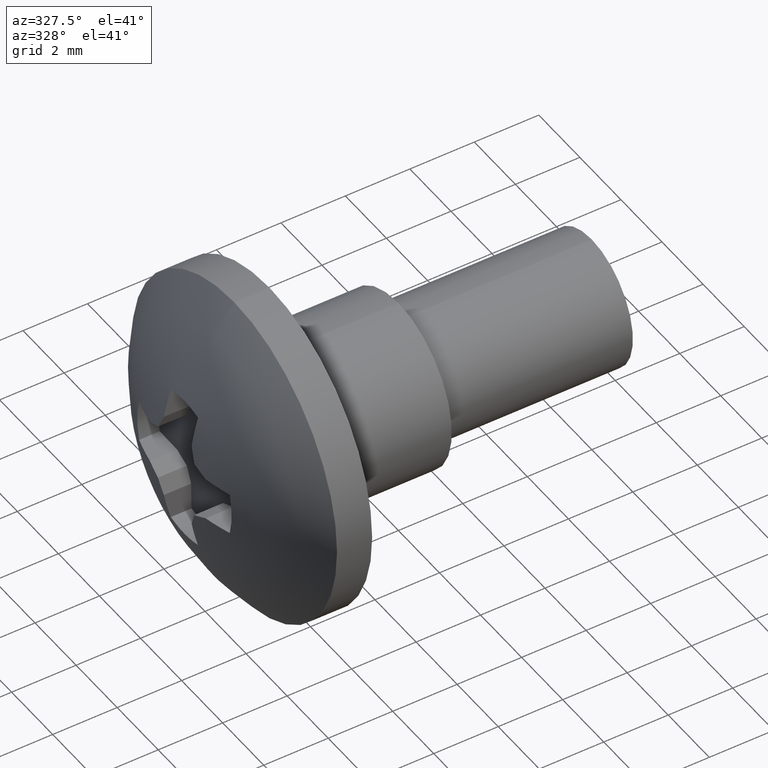
[diagram: clean part render]
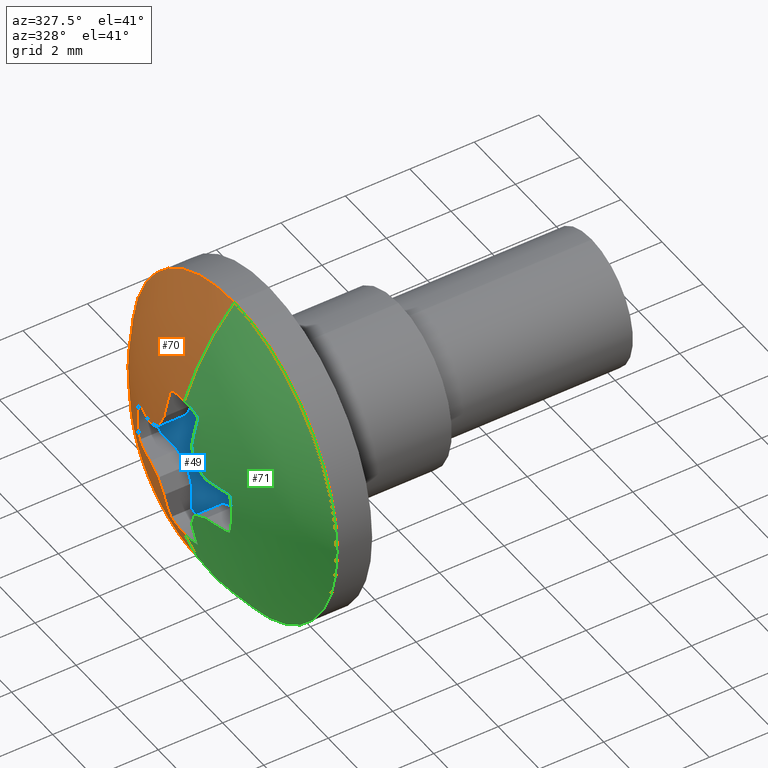
[diagram: same view with three faces highlighted in distinct colors, each labeled with its STEP entity id]
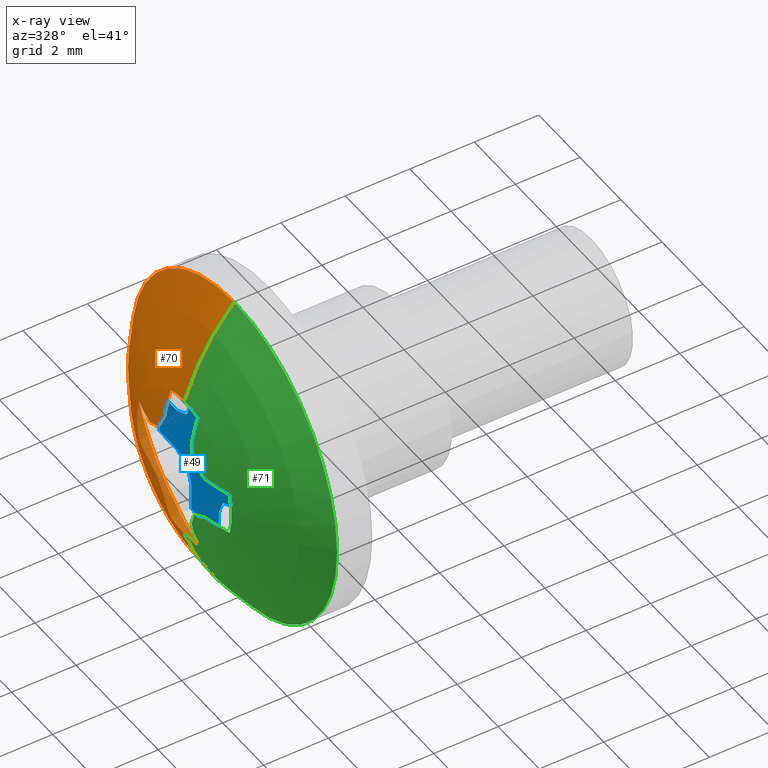
[diagram: x-ray of the same camera — body ghosted, the three highlighted faces saturated]
A machine part, auxiliary view with three faces highlighted in distinct colors.
The next image is the same camera in x-ray (body ghosted, the three faces saturated) — at least one of them is partly hidden behind the body in this view.
Their STEP definitions:

[orange] entity #70 — the highlighted spherical surface has radius 7.5 mm.
#70=ADVANCED_FACE('',(#375),#374,.T.);
#374=SPHERICAL_SURFACE('',#549,7.50000000000E+00);
#375=FACE_OUTER_BOUND('',#550,.T.);
#546=CARTESIAN_POINT('',(-5.50000000000E+00,0.00000000000E+00,0.00000000000E+00));
#547=DIRECTION('',(-1.00000000000E+00,-0.00000000000E+00,-0.00000000000E+00));
#548=DIRECTION('',(-0.00000000000E+00,2.44921270764E-16,1.00000000000E+00));
#549=AXIS2_PLACEMENT_3D('',#546,#547,#548);
#550=EDGE_LOOP('',(#692,#693,#694,#695,#696,#697,#698,#699,#700,#701,#702,#703,#704,#705));
#692=ORIENTED_EDGE('',*,*,#787,.T.);
#693=ORIENTED_EDGE('',*,*,#736,.T.);
#694=ORIENTED_EDGE('',*,*,#733,.T.);
#695=ORIENTED_EDGE('',*,*,#738,.T.);
#696=ORIENTED_EDGE('',*,*,#723,.T.);
#697=ORIENTED_EDGE('',*,*,#729,.T.);
#698=ORIENTED_EDGE('',*,*,#727,.T.);
#699=ORIENTED_EDGE('',*,*,#764,.T.);
#700=ORIENTED_EDGE('',*,*,#766,.T.);
#701=ORIENTED_EDGE('',*,*,#768,.T.);
#702=ORIENTED_EDGE('',*,*,#791,.T.);
#703=ORIENTED_EDGE('',*,*,#800,.F.);
#704=ORIENTED_EDGE('',*,*,#796,.T.);
#705=ORIENTED_EDGE('',*,*,#801,.T.);
#723=EDGE_CURVE('',#803,#817,#824,.T.);
#727=EDGE_CURVE('',#831,#845,#852,.T.);
#729=EDGE_CURVE('',#817,#831,#864,.T.);
#733=EDGE_CURVE('',#871,#885,#892,.T.);
#736=EDGE_CURVE('',#899,#871,#912,.T.);
#738=EDGE_CURVE('',#885,#803,#924,.T.);
#764=EDGE_CURVE('',#845,#1097,#1104,.T.);
#766=EDGE_CURVE('',#1097,#1110,#1117,.T.);
#768=EDGE_CURVE('',#1110,#1123,#1130,.T.);
#787=EDGE_CURVE('',#1254,#899,#1255,.T.);
#791=EDGE_CURVE('',#1123,#1273,#1280,.T.);
#796=EDGE_CURVE('',#1310,#1311,#1312,.T.);
#800=EDGE_CURVE('',#1310,#1273,#1336,.T.);
#801=EDGE_CURVE('',#1311,#1254,#1342,.T.);
#803=VERTEX_POINT('',#1349);
#817=VERTEX_POINT('',#1357);
#824=CIRCLE('',#1364,7.46743081258E+00);
#831=VERTEX_POINT('',#1366);
#845=VERTEX_POINT('',#1374);
#852=CIRCLE('',#1381,7.46743081258E+00);
#864=CIRCLE('',#1389,2.30000000000E+00);
#871=VERTEX_POINT('',#1391);
#885=VERTEX_POINT('',#1399);
#892=CIRCLE('',#1406,7.40859451546E+00);
#899=VERTEX_POINT('',#1408);
#912=CIRCLE('',#1418,7.46743081258E+00);
#924=CIRCLE('',#1425,7.40859451546E+00);
#1097=VERTEX_POINT('',#1534);
#1104=CIRCLE('',#1541,7.40859451546E+00);
#1110=VERTEX_POINT('',#1542);
#1117=CIRCLE('',#1549,7.40859451546E+00);
#1123=VERTEX_POINT('',#1550);
#1130=CIRCLE('',#1557,7.46743081258E+00);
#1254=VERTEX_POINT('',#1630);
#1255=CIRCLE('',#1634,2.30000000000E+00);
#1273=VERTEX_POINT('',#1643);
#1280=CIRCLE('',#1651,2.30000000000E+00);
#1310=VERTEX_POINT('',#1660);
#1311=VERTEX_POINT('',#1661);
#1312=CIRCLE('',#1665,5.00000000000E+00);
#1336=(BOUNDED_CURVE() B_SPLINE_CURVE(2,(#1674,#1675,#1676),.UNSPECIFIED.,.F.,.F.) B_SPLINE_CURVE_WITH_KNOTS((3,3),(0.00000000000E+00,7.42317475378E-01),.UNSPECIFIED.) CURVE() GEOMETRIC_REPRESENTATION_ITEM() RATIONAL_B_SPLINE_CURVE((1.00000000000E+00,9.70862208826E-01,9.84983400817E-01)) REPRESENTATION_ITEM('') );
#1342=(BOUNDED_CURVE() B_SPLINE_CURVE(2,(#1677,#1678,#1679),.UNSPECIFIED.,.F.,.F.) B_SPLINE_CURVE_WITH_KNOTS((3,3),(0.00000000000E+00,7.42317470334E-01),.UNSPECIFIED.) CURVE() GEOMETRIC_REPRESENTATION_ITEM() RATIONAL_B_SPLINE_CURVE((7.50000000000E-01,7.28146656768E-01,7.38737550469E-01)) REPRESENTATION_ITEM('') );
#1349=CARTESIAN_POINT('',(-1.28457102863E+01,1.35476261775E+00,-6.74654459122E-01));
#1357=CARTESIAN_POINT('',(-1.26386273190E+01,2.20331735624E+00,-6.59842881067E-01));
#1361=CARTESIAN_POINT('',(-5.50000000000E+00,1.21851929267E-02,-6.98089235243E-01));
#1362=DIRECTION('',(-5.20417042793E-18,1.74524064370E-02,-9.99847695156E-01));
#1363=DIRECTION('',(9.83699811979E-01,-1.79791076546E-01,-3.13826491457E-03));
#1364=AXIS2_PLACEMENT_3D('',#1361,#1362,#1363);
#1366=CARTESIAN_POINT('',(-1.26386273190E+01,2.20331735624E+00,6.59842881067E-01));
#1374=CARTESIAN_POINT('',(-1.28457102863E+01,1.35476261775E+00,6.74654459122E-01));
#1378=CARTESIAN_POINT('',(-5.50000000000E+00,1.21851929268E-02,6.98089235243E-01));
#1379=DIRECTION('',(8.67361737988E-19,1.74524064372E-02,9.99847695156E-01));
#1380=DIRECTION('',(9.55968324072E-01,-2.93425171028E-01,5.12175541184E-03));
#1381=AXIS2_PLACEMENT_3D('',#1378,#1379,#1380);
#1386=CARTESIAN_POINT('',(-1.26386273190E+01,0.00000000000E+00,0.00000000000E+00));
#1387=DIRECTION('',(1.00000000000E+00,0.00000000000E+00,0.00000000000E+00));
#1388=DIRECTION('',(-0.00000000000E+00,-9.57964067930E-01,2.86888209159E-01));
#1389=AXIS2_PLACEMENT_3D('',#1386,#1387,#1388);
#1391=CARTESIAN_POINT('',(-1.28457102863E+01,6.74654459122E-01,-1.35476261775E+00));
#1399=CARTESIAN_POINT('',(-1.28950302670E+01,8.84174007422E-01,-8.84174007422E-01));
#1403=CARTESIAN_POINT('',(-5.50000000000E+00,1.06643561779E+00,-4.74807728073E-01));
#1404=DIRECTION('',(6.93889390391E-18,9.13545457643E-01,-4.06736643076E-01));
#1405=DIRECTION('',(9.91511989349E-01,5.28819815750E-02,1.18774875294E-01));
#1406=AXIS2_PLACEMENT_3D('',#1403,#1404,#1405);
#1408=CARTESIAN_POINT('',(-1.26386273190E+01,6.59842881067E-01,-2.20331735624E+00));
#1415=CARTESIAN_POINT('',(-5.50000000000E+00,6.98089235244E-01,-1.21851929269E-02));
#1416=DIRECTION('',(3.46944695195E-18,9.99847695156E-01,-1.74524064373E-02));
#1417=DIRECTION('',(9.55968324072E-01,5.12175541187E-03,2.93425171028E-01));
#1418=AXIS2_PLACEMENT_3D('',#1415,#1416,#1417);
#1422=CARTESIAN_POINT('',(-5.50000000000E+00,4.74807728073E-01,-1.06643561779E+00));
#1423=DIRECTION('',(-3.46944695195E-18,4.06736643076E-01,-9.13545457643E-01));
#1424=DIRECTION('',(9.98169119868E-01,-5.52555924736E-02,-2.46013747929E-02));
#1425=AXIS2_PLACEMENT_3D('',#1422,#1423,#1424);
#1534=CARTESIAN_POINT('',(-1.28950302670E+01,8.84174007422E-01,8.84174007422E-01));
#1538=CARTESIAN_POINT('',(-5.50000000000E+00,4.74807728073E-01,1.06643561779E+00));
#1539=DIRECTION('',(6.93889390391E-18,4.06736643076E-01,9.13545457643E-01));
#1540=DIRECTION('',(9.91511989349E-01,-1.18774875294E-01,5.28819815750E-02));
#1541=AXIS2_PLACEMENT_3D('',#1538,#1539,#1540);
#1542=CARTESIAN_POINT('',(-1.28457102863E+01,6.74654459122E-01,1.35476261775E+00));
#1546=CARTESIAN_POINT('',(-5.50000000000E+00,1.06643561779E+00,4.74807728073E-01));
#1547=DIRECTION('',(-3.46944695195E-18,9.13545457643E-01,4.06736643076E-01));
#1548=DIRECTION('',(9.98169119868E-01,2.46013747929E-02,-5.52555924736E-02));
#1549=AXIS2_PLACEMENT_3D('',#1546,#1547,#1548);
#1550=CARTESIAN_POINT('',(-1.26386273190E+01,6.59842881067E-01,2.20331735624E+00));
#1554=CARTESIAN_POINT('',(-5.50000000000E+00,6.98089235244E-01,1.21851929269E-02));
#1555=DIRECTION('',(5.20417042793E-18,9.99847695156E-01,1.74524064374E-02));
#1556=DIRECTION('',(9.83699811979E-01,3.13826491464E-03,-1.79791076546E-01));
#1557=AXIS2_PLACEMENT_3D('',#1554,#1555,#1556);
#1630=CARTESIAN_POINT('',(-1.26386273190E+01,1.59523718116E-10,-2.30000000000E+00));
#1631=CARTESIAN_POINT('',(-1.26386273190E+01,0.00000000000E+00,0.00000000000E+00));
#1632=DIRECTION('',(1.00000000000E+00,0.00000000000E+00,0.00000000000E+00));
#1633=DIRECTION('',(-0.00000000000E+00,-4.78893236861E-14,1.00000000000E+00));
#1634=AXIS2_PLACEMENT_3D('',#1631,#1632,#1633);
#1643=CARTESIAN_POINT('',(-1.26386273190E+01,-1.19076156192E-15,2.30000000000E+00));
#1648=CARTESIAN_POINT('',(-1.26386273190E+01,0.00000000000E+00,0.00000000000E+00));
#1649=DIRECTION('',(1.00000000000E+00,0.00000000000E+00,0.00000000000E+00));
#1650=DIRECTION('',(-0.00000000000E+00,7.00272945365E-11,-1.00000000000E+00));
#1651=AXIS2_PLACEMENT_3D('',#1648,#1649,#1650);
#1660=CARTESIAN_POINT('',(-1.10901699437E+01,-9.08362650144E-16,5.00000000000E+00));
#1661=CARTESIAN_POINT('',(-1.10901699437E+01,0.00000000000E+00,-5.00000000000E+00));
#1662=CARTESIAN_POINT('',(-1.10901699437E+01,0.00000000000E+00,0.00000000000E+00));
#1663=DIRECTION('',(-1.00000000000E+00,0.00000000000E+00,0.00000000000E+00));
#1664=DIRECTION('',(-0.00000000000E+00,-5.92118946466E-17,1.00000000000E+00));
#1665=AXIS2_PLACEMENT_3D('',#1662,#1663,#1664);
#1674=CARTESIAN_POINT('',(-1.10901699437E+01,1.22460635383E-15,5.00000000006E+00));
#1675=CARTESIAN_POINT('',(-1.21507571948E+01,9.34185423081E-16,3.81422740526E+00));
#1676=CARTESIAN_POINT('',(-1.26386273259E+01,5.63318917561E-16,2.29999997878E+00));
#1677=CARTESIAN_POINT('',(-1.10901699437E+01,-1.77635683940E-15,-5.00000000006E+00));
#1678=CARTESIAN_POINT('',(-1.21507571874E+01,-1.15057159636E-15,-3.81422741356E+00));
#1679=CARTESIAN_POINT('',(-1.26386273193E+01,-6.71747485549E-16,-2.29999999907E+00));

[blue] entity #49 — the highlighted planar face has unit normal (1, 0, -0).
#49=ADVANCED_FACE('',(#165),#164,.F.);
#164=PLANE('',#444);
#165=FACE_OUTER_BOUND('',#445,.T.);
#441=CARTESIAN_POINT('',(-1.20000000000E+01,-2.88111015058E+00,2.88111015058E+00));
#442=DIRECTION('',(1.00000000000E+00,0.00000000000E+00,-0.00000000000E+00));
#443=DIRECTION('',(-0.00000000000E+00,0.00000000000E+00,-1.00000000000E+00));
#444=AXIS2_PLACEMENT_3D('',#441,#442,#443);
#445=EDGE_LOOP('',(#590,#591,#592,#593,#594,#595,#596,#597,#598,#599,#600,#601,#602,#603,#604,#605,#606,#607,#608,#609));
#590=ORIENTED_EDGE('',*,*,#728,.T.);
#591=ORIENTED_EDGE('',*,*,#721,.T.);
#592=ORIENTED_EDGE('',*,*,#737,.T.);
#593=ORIENTED_EDGE('',*,*,#731,.T.);
#594=ORIENTED_EDGE('',*,*,#735,.T.);
#595=ORIENTED_EDGE('',*,*,#749,.T.);
#596=ORIENTED_EDGE('',*,*,#750,.T.);
#597=ORIENTED_EDGE('',*,*,#751,.T.);
#598=ORIENTED_EDGE('',*,*,#752,.T.);
#599=ORIENTED_EDGE('',*,*,#753,.T.);
#600=ORIENTED_EDGE('',*,*,#754,.T.);
#601=ORIENTED_EDGE('',*,*,#755,.T.);
#602=ORIENTED_EDGE('',*,*,#756,.T.);
#603=ORIENTED_EDGE('',*,*,#757,.T.);
#604=ORIENTED_EDGE('',*,*,#758,.T.);
#605=ORIENTED_EDGE('',*,*,#759,.T.);
#606=ORIENTED_EDGE('',*,*,#760,.T.);
#607=ORIENTED_EDGE('',*,*,#761,.T.);
#608=ORIENTED_EDGE('',*,*,#762,.T.);
#609=ORIENTED_EDGE('',*,*,#725,.T.);
#721=EDGE_CURVE('',#810,#802,#811,.T.);
#725=EDGE_CURVE('',#838,#830,#839,.T.);
#728=EDGE_CURVE('',#830,#810,#858,.T.);
#731=EDGE_CURVE('',#878,#870,#879,.T.);
#735=EDGE_CURVE('',#870,#898,#906,.T.);
#737=EDGE_CURVE('',#802,#878,#918,.T.);
#749=EDGE_CURVE('',#898,#1000,#1001,.T.);
#750=EDGE_CURVE('',#1000,#1007,#1008,.T.);
#751=EDGE_CURVE('',#1007,#1014,#1015,.T.);
#752=EDGE_CURVE('',#1014,#1021,#1022,.T.);
#753=EDGE_CURVE('',#1021,#1028,#1029,.T.);
#754=EDGE_CURVE('',#1028,#1035,#1036,.T.);
#755=EDGE_CURVE('',#1035,#1042,#1043,.T.);
#756=EDGE_CURVE('',#1042,#1049,#1050,.T.);
#757=EDGE_CURVE('',#1049,#1056,#1057,.T.);
#758=EDGE_CURVE('',#1056,#1063,#1064,.T.);
#759=EDGE_CURVE('',#1063,#1070,#1071,.T.);
#760=EDGE_CURVE('',#1070,#1077,#1078,.T.);
#761=EDGE_CURVE('',#1077,#1084,#1085,.T.);
#762=EDGE_CURVE('',#1084,#838,#1091,.T.);
#802=VERTEX_POINT('',#1348);
#810=VERTEX_POINT('',#1353);
#811=LINE('',#1354,#1355);
#830=VERTEX_POINT('',#1365);
#838=VERTEX_POINT('',#1370);
#839=LINE('',#1371,#1372);
#858=CIRCLE('',#1385,2.30000000000E+00);
#870=VERTEX_POINT('',#1390);
#878=VERTEX_POINT('',#1395);
#879=LINE('',#1396,#1397);
#898=VERTEX_POINT('',#1407);
#906=LINE('',#1412,#1413);
#918=LINE('',#1419,#1420);
#1000=VERTEX_POINT('',#1476);
#1001=CIRCLE('',#1480,2.30000000000E+00);
#1007=VERTEX_POINT('',#1481);
#1008=LINE('',#1482,#1483);
#1014=VERTEX_POINT('',#1485);
#1015=LINE('',#1486,#1487);
#1021=VERTEX_POINT('',#1489);
#1022=LINE('',#1490,#1491);
#1028=VERTEX_POINT('',#1493);
#1029=LINE('',#1494,#1495);
#1035=VERTEX_POINT('',#1497);
#1036=CIRCLE('',#1501,2.30000000000E+00);
#1042=VERTEX_POINT('',#1502);
#1043=LINE('',#1503,#1504);
#1049=VERTEX_POINT('',#1506);
#1050=LINE('',#1507,#1508);
#1056=VERTEX_POINT('',#1510);
#1057=LINE('',#1511,#1512);
#1063=VERTEX_POINT('',#1514);
#1064=LINE('',#1515,#1516);
#1070=VERTEX_POINT('',#1518);
#1071=CIRCLE('',#1522,2.30000000000E+00);
#1077=VERTEX_POINT('',#1523);
#1078=LINE('',#1524,#1525);
#1084=VERTEX_POINT('',#1527);
#1085=LINE('',#1528,#1529);
#1091=LINE('',#1531,#1532);
#1348=CARTESIAN_POINT('',(-1.20000000000E+01,1.35476261775E+00,-6.74654459122E-01));
#1353=CARTESIAN_POINT('',(-1.20000000000E+01,2.20331735624E+00,-6.59842881067E-01));
#1354=CARTESIAN_POINT('',(-1.20000000000E+01,2.20331735624E+00,-6.59842881067E-01));
#1355=VECTOR('',#1356,8.48683997173E-01);
#1356=DIRECTION('',(0.00000000000E+00,-9.99847695156E-01,-1.74524064367E-02));
#1365=CARTESIAN_POINT('',(-1.20000000000E+01,2.20331735624E+00,6.59842881067E-01));
#1370=CARTESIAN_POINT('',(-1.20000000000E+01,1.35476261775E+00,6.74654459122E-01));
#1371=CARTESIAN_POINT('',(-1.20000000000E+01,1.35476261775E+00,6.74654459122E-01));
#1372=VECTOR('',#1373,8.48683997173E-01);
#1373=DIRECTION('',(0.00000000000E+00,9.99847695156E-01,-1.74524064367E-02));
#1382=CARTESIAN_POINT('',(-1.20000000000E+01,0.00000000000E+00,0.00000000000E+00));
#1383=DIRECTION('',(-1.00000000000E+00,0.00000000000E+00,0.00000000000E+00));
#1384=DIRECTION('',(-0.00000000000E+00,-9.57964067930E-01,-2.86888209159E-01));
#1385=AXIS2_PLACEMENT_3D('',#1382,#1383,#1384);
#1390=CARTESIAN_POINT('',(-1.20000000000E+01,6.74654459122E-01,-1.35476261775E+00));
#1395=CARTESIAN_POINT('',(-1.20000000000E+01,8.84174007422E-01,-8.84174007422E-01));
#1396=CARTESIAN_POINT('',(-1.20000000000E+01,8.84174007422E-01,-8.84174007422E-01));
#1397=VECTOR('',#1398,5.15123365118E-01);
#1398=DIRECTION('',(0.00000000000E+00,-4.06736643080E-01,-9.13545457641E-01));
#1407=CARTESIAN_POINT('',(-1.20000000000E+01,6.59842881067E-01,-2.20331735624E+00));
#1412=CARTESIAN_POINT('',(-1.20000000000E+01,6.74654459122E-01,-1.35476261775E+00));
#1413=VECTOR('',#1414,8.48683997173E-01);
#1414=DIRECTION('',(0.00000000000E+00,-1.74524064367E-02,-9.99847695156E-01));
#1419=CARTESIAN_POINT('',(-1.20000000000E+01,1.35476261775E+00,-6.74654459122E-01));
#1420=VECTOR('',#1421,5.15123365118E-01);
#1421=DIRECTION('',(0.00000000000E+00,-9.13545457641E-01,-4.06736643080E-01));
#1476=CARTESIAN_POINT('',(-1.20000000000E+01,-6.59842881066E-01,-2.20331735624E+00));
#1477=CARTESIAN_POINT('',(-1.20000000000E+01,0.00000000000E+00,0.00000000000E+00));
#1478=DIRECTION('',(-1.00000000000E+00,0.00000000000E+00,0.00000000000E+00));
#1479=DIRECTION('',(-0.00000000000E+00,-2.86888209159E-01,9.57964067930E-01));
#1480=AXIS2_PLACEMENT_3D('',#1477,#1478,#1479);
#1481=CARTESIAN_POINT('',(-1.20000000000E+01,-6.74654459122E-01,-1.35476261775E+00));
#1482=CARTESIAN_POINT('',(-1.20000000000E+01,-6.59842881066E-01,-2.20331735624E+00));
#1483=VECTOR('',#1484,8.48683997173E-01);
#1484=DIRECTION('',(0.00000000000E+00,-1.74524064379E-02,9.99847695156E-01));
#1485=CARTESIAN_POINT('',(-1.20000000000E+01,-8.84174007422E-01,-8.84174007422E-01));
#1486=CARTESIAN_POINT('',(-1.20000000000E+01,-6.74654459122E-01,-1.35476261775E+00));
#1487=VECTOR('',#1488,5.15123365118E-01);
#1488=DIRECTION('',(0.00000000000E+00,-4.06736643080E-01,9.13545457641E-01));
#1489=CARTESIAN_POINT('',(-1.20000000000E+01,-1.35476261775E+00,-6.74654459122E-01));
#1490=CARTESIAN_POINT('',(-1.20000000000E+01,-8.84174007422E-01,-8.84174007422E-01));
#1491=VECTOR('',#1492,5.15123365118E-01);
#1492=DIRECTION('',(0.00000000000E+00,-9.13545457641E-01,4.06736643080E-01));
#1493=CARTESIAN_POINT('',(-1.20000000000E+01,-2.20331735624E+00,-6.59842881067E-01));
#1494=CARTESIAN_POINT('',(-1.20000000000E+01,-1.35476261775E+00,-6.74654459122E-01));
#1495=VECTOR('',#1496,8.48683997173E-01);
#1496=DIRECTION('',(0.00000000000E+00,-9.99847695156E-01,1.74524064367E-02));
#1497=CARTESIAN_POINT('',(-1.20000000000E+01,-2.20331735624E+00,6.59842881066E-01));
#1498=CARTESIAN_POINT('',(-1.20000000000E+01,0.00000000000E+00,0.00000000000E+00));
#1499=DIRECTION('',(-1.00000000000E+00,-0.00000000000E+00,0.00000000000E+00));
#1500=DIRECTION('',(-0.00000000000E+00,9.57964067930E-01,2.86888209159E-01));
#1501=AXIS2_PLACEMENT_3D('',#1498,#1499,#1500);
#1502=CARTESIAN_POINT('',(-1.20000000000E+01,-1.35476261775E+00,6.74654459122E-01));
#1503=CARTESIAN_POINT('',(-1.20000000000E+01,-2.20331735624E+00,6.59842881066E-01));
#1504=VECTOR('',#1505,8.48683997173E-01);
#1505=DIRECTION('',(0.00000000000E+00,9.99847695156E-01,1.74524064379E-02));
#1506=CARTESIAN_POINT('',(-1.20000000000E+01,-8.84174007422E-01,8.84174007422E-01));
#1507=CARTESIAN_POINT('',(-1.20000000000E+01,-1.35476261775E+00,6.74654459122E-01));
#1508=VECTOR('',#1509,5.15123365118E-01);
#1509=DIRECTION('',(0.00000000000E+00,9.13545457641E-01,4.06736643080E-01));
#1510=CARTESIAN_POINT('',(-1.20000000000E+01,-6.74654459122E-01,1.35476261775E+00));
#1511=CARTESIAN_POINT('',(-1.20000000000E+01,-8.84174007422E-01,8.84174007422E-01));
#1512=VECTOR('',#1513,5.15123365118E-01);
#1513=DIRECTION('',(0.00000000000E+00,4.06736643080E-01,9.13545457641E-01));
#1514=CARTESIAN_POINT('',(-1.20000000000E+01,-6.59842881067E-01,2.20331735624E+00));
#1515=CARTESIAN_POINT('',(-1.20000000000E+01,-6.74654459122E-01,1.35476261775E+00));
#1516=VECTOR('',#1517,8.48683997173E-01);
#1517=DIRECTION('',(0.00000000000E+00,1.74524064367E-02,9.99847695156E-01));
#1518=CARTESIAN_POINT('',(-1.20000000000E+01,6.59842881067E-01,2.20331735624E+00));
#1519=CARTESIAN_POINT('',(-1.20000000000E+01,0.00000000000E+00,0.00000000000E+00));
#1520=DIRECTION('',(-1.00000000000E+00,0.00000000000E+00,0.00000000000E+00));
#1521=DIRECTION('',(-0.00000000000E+00,2.86888209159E-01,-9.57964067930E-01));
#1522=AXIS2_PLACEMENT_3D('',#1519,#1520,#1521);
#1523=CARTESIAN_POINT('',(-1.20000000000E+01,6.74654459122E-01,1.35476261775E+00));
#1524=CARTESIAN_POINT('',(-1.20000000000E+01,6.59842881067E-01,2.20331735624E+00));
#1525=VECTOR('',#1526,8.48683997173E-01);
#1526=DIRECTION('',(0.00000000000E+00,1.74524064367E-02,-9.99847695156E-01));
#1527=CARTESIAN_POINT('',(-1.20000000000E+01,8.84174007422E-01,8.84174007422E-01));
#1528=CARTESIAN_POINT('',(-1.20000000000E+01,6.74654459122E-01,1.35476261775E+00));
#1529=VECTOR('',#1530,5.15123365118E-01);
#1530=DIRECTION('',(0.00000000000E+00,4.06736643080E-01,-9.13545457641E-01));
#1531=CARTESIAN_POINT('',(-1.20000000000E+01,8.84174007422E-01,8.84174007422E-01));
#1532=VECTOR('',#1533,5.15123365118E-01);
#1533=DIRECTION('',(0.00000000000E+00,9.13545457641E-01,-4.06736643080E-01));

[green] entity #71 — the highlighted spherical surface has radius 7.5 mm.
#71=ADVANCED_FACE('',(#385),#384,.T.);
#384=SPHERICAL_SURFACE('',#554,7.50000000000E+00);
#385=FACE_OUTER_BOUND('',#555,.T.);
#551=CARTESIAN_POINT('',(-5.50000000000E+00,0.00000000000E+00,0.00000000000E+00));
#552=DIRECTION('',(-1.00000000000E+00,-0.00000000000E+00,-0.00000000000E+00));
#553=DIRECTION('',(0.00000000000E+00,-1.22456590850E-16,-1.00000000000E+00));
#554=AXIS2_PLACEMENT_3D('',#551,#552,#553);
#555=EDGE_LOOP('',(#706,#707,#708,#709,#710,#711,#712,#713,#714,#715,#716,#717,#718,#719));
#706=ORIENTED_EDGE('',*,*,#799,.T.);
#707=ORIENTED_EDGE('',*,*,#800,.T.);
#708=ORIENTED_EDGE('',*,*,#790,.T.);
#709=ORIENTED_EDGE('',*,*,#771,.T.);
#710=ORIENTED_EDGE('',*,*,#773,.T.);
#711=ORIENTED_EDGE('',*,*,#775,.T.);
#712=ORIENTED_EDGE('',*,*,#777,.T.);
#713=ORIENTED_EDGE('',*,*,#789,.T.);
#714=ORIENTED_EDGE('',*,*,#780,.T.);
#715=ORIENTED_EDGE('',*,*,#782,.T.);
#716=ORIENTED_EDGE('',*,*,#784,.T.);
#717=ORIENTED_EDGE('',*,*,#786,.T.);
#718=ORIENTED_EDGE('',*,*,#788,.T.);
#719=ORIENTED_EDGE('',*,*,#801,.F.);
#771=EDGE_CURVE('',#1136,#1143,#1150,.T.);
#773=EDGE_CURVE('',#1143,#1156,#1163,.T.);
#775=EDGE_CURVE('',#1156,#1169,#1176,.T.);
#777=EDGE_CURVE('',#1169,#1182,#1189,.T.);
#780=EDGE_CURVE('',#1195,#1202,#1209,.T.);
#782=EDGE_CURVE('',#1202,#1215,#1222,.T.);
#784=EDGE_CURVE('',#1215,#1228,#1235,.T.);
#786=EDGE_CURVE('',#1228,#1241,#1248,.T.);
#788=EDGE_CURVE('',#1241,#1254,#1261,.T.);
#789=EDGE_CURVE('',#1182,#1195,#1267,.T.);
#790=EDGE_CURVE('',#1273,#1136,#1274,.T.);
#799=EDGE_CURVE('',#1311,#1310,#1330,.T.);
#800=EDGE_CURVE('',#1310,#1273,#1336,.T.);
#801=EDGE_CURVE('',#1311,#1254,#1342,.T.);
#1136=VERTEX_POINT('',#1558);
#1143=VERTEX_POINT('',#1562);
#1150=CIRCLE('',#1569,7.46743081258E+00);
#1156=VERTEX_POINT('',#1570);
#1163=CIRCLE('',#1577,7.40859451546E+00);
#1169=VERTEX_POINT('',#1578);
#1176=CIRCLE('',#1585,7.40859451546E+00);
#1182=VERTEX_POINT('',#1586);
#1189=CIRCLE('',#1593,7.46743081258E+00);
#1195=VERTEX_POINT('',#1594);
#1202=VERTEX_POINT('',#1598);
#1209=CIRCLE('',#1605,7.46743081258E+00);
#1215=VERTEX_POINT('',#1606);
#1222=CIRCLE('',#1613,7.40859451546E+00);
#1228=VERTEX_POINT('',#1614);
#1235=CIRCLE('',#1621,7.40859451546E+00);
#1241=VERTEX_POINT('',#1622);
#1248=CIRCLE('',#1629,7.46743081258E+00);
#1254=VERTEX_POINT('',#1630);
#1261=CIRCLE('',#1638,2.30000000000E+00);
#1267=CIRCLE('',#1642,2.30000000000E+00);
#1273=VERTEX_POINT('',#1643);
#1274=CIRCLE('',#1647,2.30000000000E+00);
#1310=VERTEX_POINT('',#1660);
#1311=VERTEX_POINT('',#1661);
#1330=CIRCLE('',#1673,5.00000000000E+00);
#1336=(BOUNDED_CURVE() B_SPLINE_CURVE(2,(#1674,#1675,#1676),.UNSPECIFIED.,.F.,.F.) B_SPLINE_CURVE_WITH_KNOTS((3,3),(0.00000000000E+00,7.42317475378E-01),.UNSPECIFIED.) CURVE() GEOMETRIC_REPRESENTATION_ITEM() RATIONAL_B_SPLINE_CURVE((1.00000000000E+00,9.70862208826E-01,9.84983400817E-01)) REPRESENTATION_ITEM('') );
#1342=(BOUNDED_CURVE() B_SPLINE_CURVE(2,(#1677,#1678,#1679),.UNSPECIFIED.,.F.,.F.) B_SPLINE_CURVE_WITH_KNOTS((3,3),(0.00000000000E+00,7.42317470334E-01),.UNSPECIFIED.) CURVE() GEOMETRIC_REPRESENTATION_ITEM() RATIONAL_B_SPLINE_CURVE((7.50000000000E-01,7.28146656768E-01,7.38737550469E-01)) REPRESENTATION_ITEM('') );
#1558=CARTESIAN_POINT('',(-1.26386273190E+01,-6.59842881067E-01,2.20331735624E+00));
#1562=CARTESIAN_POINT('',(-1.28457102863E+01,-6.74654459122E-01,1.35476261775E+00));
#1566=CARTESIAN_POINT('',(-5.50000000000E+00,-6.98089235244E-01,1.21851929270E-02));
#1567=DIRECTION('',(-4.33680868994E-18,-9.99847695156E-01,1.74524064374E-02));
#1568=DIRECTION('',(9.55968324072E-01,-5.12175541190E-03,-2.93425171028E-01));
#1569=AXIS2_PLACEMENT_3D('',#1566,#1567,#1568);
#1570=CARTESIAN_POINT('',(-1.28950302670E+01,-8.84174007422E-01,8.84174007422E-01));
#1574=CARTESIAN_POINT('',(-5.50000000000E+00,-1.06643561779E+00,4.74807728073E-01));
#1575=DIRECTION('',(6.93889390391E-18,-9.13545457643E-01,4.06736643076E-01));
#1576=DIRECTION('',(9.91511989349E-01,-5.28819815750E-02,-1.18774875294E-01));
#1577=AXIS2_PLACEMENT_3D('',#1574,#1575,#1576);
#1578=CARTESIAN_POINT('',(-1.28457102863E+01,-1.35476261775E+00,6.74654459122E-01));
#1582=CARTESIAN_POINT('',(-5.50000000000E+00,-4.74807728073E-01,1.06643561779E+00));
#1583=DIRECTION('',(-3.46944695195E-18,-4.06736643076E-01,9.13545457643E-01));
#1584=DIRECTION('',(9.98169119868E-01,5.52555924736E-02,2.46013747929E-02));
#1585=AXIS2_PLACEMENT_3D('',#1582,#1583,#1584);
#1586=CARTESIAN_POINT('',(-1.26386273190E+01,-2.20331735624E+00,6.59842881067E-01));
#1590=CARTESIAN_POINT('',(-5.50000000000E+00,-1.21851929268E-02,6.98089235243E-01));
#1591=DIRECTION('',(1.73472347598E-18,-1.74524064372E-02,9.99847695156E-01));
#1592=DIRECTION('',(9.83699811979E-01,1.79791076546E-01,3.13826491460E-03));
#1593=AXIS2_PLACEMENT_3D('',#1590,#1591,#1592);
#1594=CARTESIAN_POINT('',(-1.26386273190E+01,-2.20331735624E+00,-6.59842881067E-01));
#1598=CARTESIAN_POINT('',(-1.28457102863E+01,-1.35476261775E+00,-6.74654459122E-01));
#1602=CARTESIAN_POINT('',(-5.50000000000E+00,-1.21851929269E-02,-6.98089235244E-01));
#1603=DIRECTION('',(3.46944695195E-18,-1.74524064373E-02,-9.99847695156E-01));
#1604=DIRECTION('',(9.55968324072E-01,2.93425171028E-01,-5.12175541187E-03));
#1605=AXIS2_PLACEMENT_3D('',#1602,#1603,#1604);
#1606=CARTESIAN_POINT('',(-1.28950302670E+01,-8.84174007422E-01,-8.84174007422E-01));
#1610=CARTESIAN_POINT('',(-5.50000000000E+00,-4.74807728073E-01,-1.06643561779E+00));
#1611=DIRECTION('',(6.93889390391E-18,-4.06736643076E-01,-9.13545457643E-01));
#1612=DIRECTION('',(9.91511989349E-01,1.18774875294E-01,-5.28819815750E-02));
#1613=AXIS2_PLACEMENT_3D('',#1610,#1611,#1612);
#1614=CARTESIAN_POINT('',(-1.28457102863E+01,-6.74654459122E-01,-1.35476261775E+00));
#1618=CARTESIAN_POINT('',(-5.50000000000E+00,-1.06643561779E+00,-4.74807728073E-01));
#1619=DIRECTION('',(-3.46944695195E-18,-9.13545457643E-01,-4.06736643076E-01));
#1620=DIRECTION('',(9.98169119868E-01,-2.46013747929E-02,5.52555924736E-02));
#1621=AXIS2_PLACEMENT_3D('',#1618,#1619,#1620);
#1622=CARTESIAN_POINT('',(-1.26386273190E+01,-6.59842881067E-01,-2.20331735624E+00));
#1626=CARTESIAN_POINT('',(-5.50000000000E+00,-6.98089235243E-01,-1.21851929268E-02));
#1627=DIRECTION('',(1.73472347598E-18,-9.99847695156E-01,-1.74524064372E-02));
#1628=DIRECTION('',(9.83699811979E-01,-3.13826491460E-03,1.79791076546E-01));
#1629=AXIS2_PLACEMENT_3D('',#1626,#1627,#1628);
#1630=CARTESIAN_POINT('',(-1.26386273190E+01,1.59523718116E-10,-2.30000000000E+00));
#1635=CARTESIAN_POINT('',(-1.26386273190E+01,0.00000000000E+00,0.00000000000E+00));
#1636=DIRECTION('',(1.00000000000E+00,0.00000000000E+00,0.00000000000E+00));
#1637=DIRECTION('',(-0.00000000000E+00,-4.78893236861E-14,1.00000000000E+00));
#1638=AXIS2_PLACEMENT_3D('',#1635,#1636,#1637);
#1639=CARTESIAN_POINT('',(-1.26386273190E+01,0.00000000000E+00,0.00000000000E+00));
#1640=DIRECTION('',(1.00000000000E+00,0.00000000000E+00,0.00000000000E+00));
#1641=DIRECTION('',(-0.00000000000E+00,9.57964067930E-01,-2.86888209159E-01));
#1642=AXIS2_PLACEMENT_3D('',#1639,#1640,#1641);
#1643=CARTESIAN_POINT('',(-1.26386273190E+01,-1.19076156192E-15,2.30000000000E+00));
#1644=CARTESIAN_POINT('',(-1.26386273190E+01,0.00000000000E+00,0.00000000000E+00));
#1645=DIRECTION('',(1.00000000000E+00,0.00000000000E+00,0.00000000000E+00));
#1646=DIRECTION('',(-0.00000000000E+00,7.00272945365E-11,-1.00000000000E+00));
#1647=AXIS2_PLACEMENT_3D('',#1644,#1645,#1646);
#1660=CARTESIAN_POINT('',(-1.10901699437E+01,-9.08362650144E-16,5.00000000000E+00));
#1661=CARTESIAN_POINT('',(-1.10901699437E+01,0.00000000000E+00,-5.00000000000E+00));
#1670=CARTESIAN_POINT('',(-1.10901699437E+01,0.00000000000E+00,0.00000000000E+00));
#1671=DIRECTION('',(-1.00000000000E+00,0.00000000000E+00,0.00000000000E+00));
#1672=DIRECTION('',(-0.00000000000E+00,-5.92118946466E-17,1.00000000000E+00));
#1673=AXIS2_PLACEMENT_3D('',#1670,#1671,#1672);
#1674=CARTESIAN_POINT('',(-1.10901699437E+01,1.22460635383E-15,5.00000000006E+00));
#1675=CARTESIAN_POINT('',(-1.21507571948E+01,9.34185423081E-16,3.81422740526E+00));
#1676=CARTESIAN_POINT('',(-1.26386273259E+01,5.63318917561E-16,2.29999997878E+00));
#1677=CARTESIAN_POINT('',(-1.10901699437E+01,-1.77635683940E-15,-5.00000000006E+00));
#1678=CARTESIAN_POINT('',(-1.21507571874E+01,-1.15057159636E-15,-3.81422741356E+00));
#1679=CARTESIAN_POINT('',(-1.26386273193E+01,-6.71747485549E-16,-2.29999999907E+00));